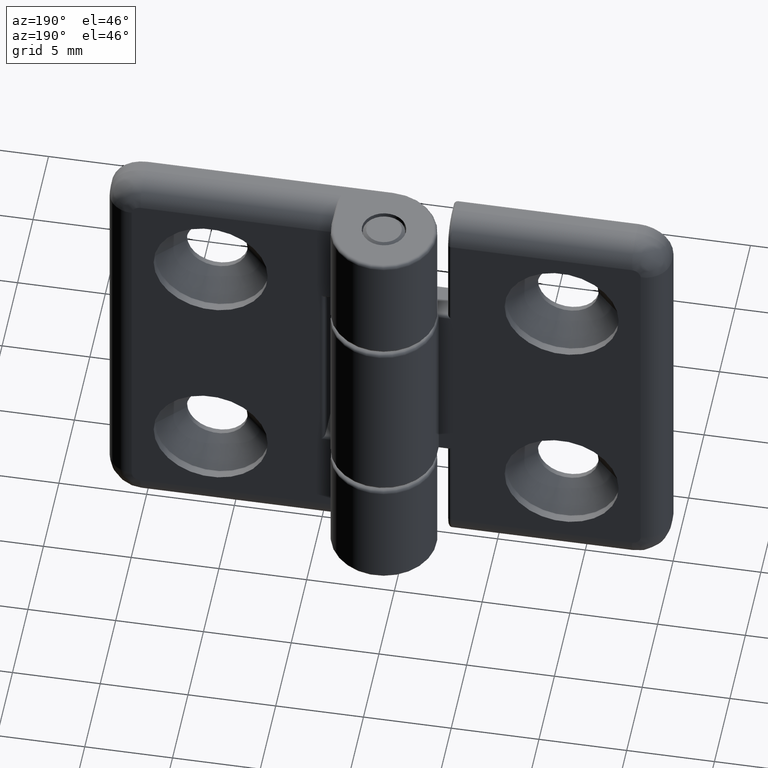
[diagram: clean part render]
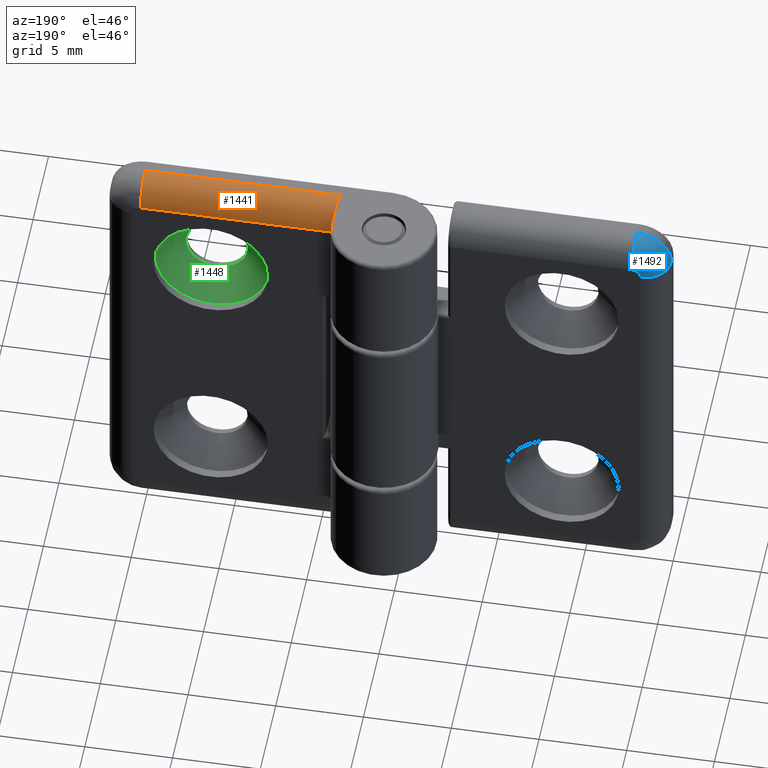
[diagram: same view with three faces highlighted in distinct colors, each labeled with its STEP entity id]
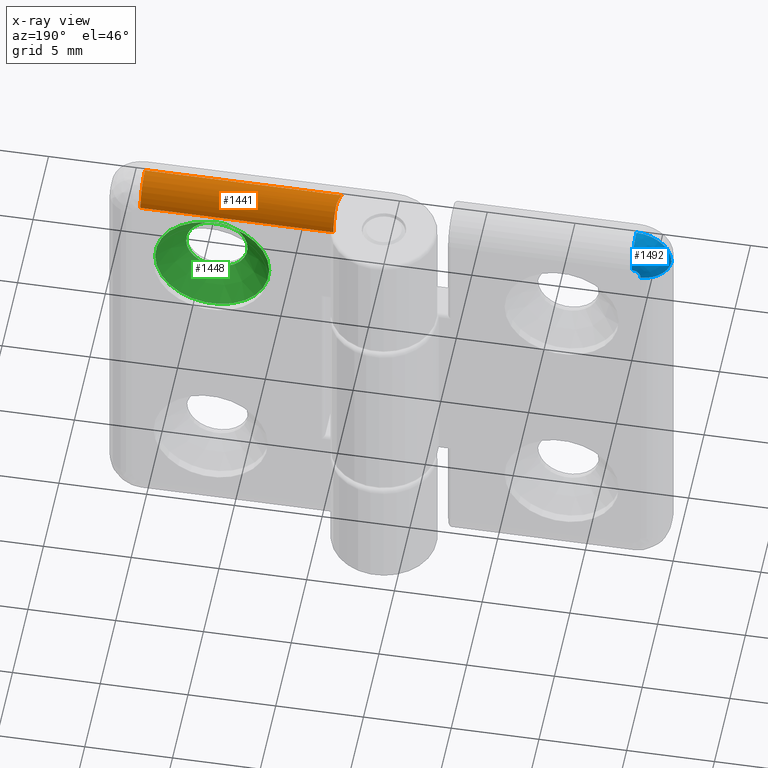
[diagram: x-ray of the same camera — body ghosted, the three highlighted faces saturated]
A machine part, auxiliary view with three faces highlighted in distinct colors.
The next image is the same camera in x-ray (body ghosted, the three faces saturated) — at least one of them is partly hidden behind the body in this view.
Their STEP definitions:

[orange] entity #1441 — the highlighted cylindrical surface (edge-blend (fillet) strip) has radius 1.5 mm, axis along (-1, 0, 0).
#157=FACE_OUTER_BOUND('',#262,.T.);
#262=EDGE_LOOP('',(#1104,#1105,#1106,#1107,#1108));
#354=B_SPLINE_CURVE_WITH_KNOTS('',3,(#2240,#2241,#2242,#2243,#2244,#2245),
 .UNSPECIFIED.,.F.,.F.,(4,2,4),(0.15983985999511,0.198650131294302,0.237460402593493),
 .UNSPECIFIED.);
#387=LINE('',#2379,#475);
#393=LINE('',#2434,#481);
#475=VECTOR('',#1871,11.);
#481=VECTOR('',#1915,11.2);
#553=CIRCLE('',#1547,1.5);
#574=CIRCLE('',#1586,1.5);
#634=VERTEX_POINT('',#2237);
#635=VERTEX_POINT('',#2239);
#662=VERTEX_POINT('',#2329);
#676=VERTEX_POINT('',#2378);
#688=VERTEX_POINT('',#2427);
#760=EDGE_CURVE('',#634,#635,#354,.F.);
#800=EDGE_CURVE('',#662,#635,#553,.F.);
#825=EDGE_CURVE('',#676,#662,#387,.T.);
#842=EDGE_CURVE('',#688,#676,#574,.T.);
#844=EDGE_CURVE('',#634,#688,#393,.T.);
#1104=ORIENTED_EDGE('',*,*,#800,.T.);
#1105=ORIENTED_EDGE('',*,*,#760,.F.);
#1106=ORIENTED_EDGE('',*,*,#844,.T.);
#1107=ORIENTED_EDGE('',*,*,#842,.T.);
#1108=ORIENTED_EDGE('',*,*,#825,.T.);
#1374=CYLINDRICAL_SURFACE('',#1588,1.5);
#1441=ADVANCED_FACE('',(#157),#1374,.T.);
#1547=AXIS2_PLACEMENT_3D('',#2330,#1813,#1814);
#1586=AXIS2_PLACEMENT_3D('',#2430,#1908,#1909);
#1588=AXIS2_PLACEMENT_3D('',#2433,#1913,#1914);
#1813=DIRECTION('center_axis',(-1.,0.,0.));
#1814=DIRECTION('ref_axis',(0.,0.707106781186548,0.707106781186547));
#1871=DIRECTION('',(-1.,0.,0.));
#1908=DIRECTION('center_axis',(-1.,0.,0.));
#1909=DIRECTION('ref_axis',(0.,0.,1.));
#1913=DIRECTION('center_axis',(-1.,0.,0.));
#1914=DIRECTION('ref_axis',(0.,0.707106781186548,0.707106781186547));
#1915=DIRECTION('',(1.,0.,0.));
#2237=CARTESIAN_POINT('',(2.8,-2.2,12.5));
#2239=CARTESIAN_POINT('',(3.,-1.45166852264521,12.3));
#2240=CARTESIAN_POINT('Ctrl Pts',(3.,-1.45166852264521,12.3));
#2241=CARTESIAN_POINT('Ctrl Pts',(3.,-1.56378708417621,12.3645398836841));
#2242=CARTESIAN_POINT('Ctrl Pts',(2.9704720193987,-1.68907173392049,12.4165700915651));
#2243=CARTESIAN_POINT('Ctrl Pts',(2.89299666646422,-1.94649356205283,12.4844020874547));
#2244=CARTESIAN_POINT('Ctrl Pts',(2.84437271077872,-2.07848032684421,12.5));
#2245=CARTESIAN_POINT('Ctrl Pts',(2.8,-2.2,12.5));
#2329=CARTESIAN_POINT('',(3.,-0.699999999999999,11.));
#2330=CARTESIAN_POINT('Origin',(3.,-2.2,11.));
#2378=CARTESIAN_POINT('',(14.,-0.699999999999999,11.));
#2379=CARTESIAN_POINT('',(11.25,-0.699999999999999,11.));
#2427=CARTESIAN_POINT('',(14.,-2.2,12.5));
#2430=CARTESIAN_POINT('Origin',(14.,-2.2,11.));
#2433=CARTESIAN_POINT('Origin',(11.25,-2.2,11.));
#2434=CARTESIAN_POINT('',(11.25,-2.2,12.5));

[blue] entity #1492 — the highlighted face is a freeform B-spline surface patch.
#48=(
BOUNDED_SURFACE()
B_SPLINE_SURFACE(2,2,((#2650,#2651,#2652),(#2653,#2654,#2655),(#2656,#2657,
#2658)),.UNSPECIFIED.,.F.,.F.,.F.)
B_SPLINE_SURFACE_WITH_KNOTS((3,3),(3,3),(-1.57079632679474,3.22098823642465E-13),
(1.1102230246247E-13,1.57079632679479),.UNSPECIFIED.)
GEOMETRIC_REPRESENTATION_ITEM()
RATIONAL_B_SPLINE_SURFACE(((1.,0.707106781186625,1.),(0.70710678118649,
0.500000000000014,0.70710678118649),(1.,0.707106781186625,1.)))
REPRESENTATION_ITEM('')
SURFACE()
);
#208=FACE_OUTER_BOUND('',#328,.T.);
#328=EDGE_LOOP('',(#1320,#1321,#1322,#1323));
#613=CIRCLE('',#1677,2.);
#614=CIRCLE('',#1680,1.5);
#616=CIRCLE('',#1683,0.5);
#622=CIRCLE('',#1693,1.5);
#740=VERTEX_POINT('',#2614);
#741=VERTEX_POINT('',#2618);
#742=VERTEX_POINT('',#2624);
#744=VERTEX_POINT('',#2630);
#933=EDGE_CURVE('',#741,#740,#613,.F.);
#936=EDGE_CURVE('',#742,#741,#614,.T.);
#939=EDGE_CURVE('',#742,#744,#616,.T.);
#948=EDGE_CURVE('',#740,#744,#622,.T.);
#1320=ORIENTED_EDGE('',*,*,#939,.T.);
#1321=ORIENTED_EDGE('',*,*,#948,.F.);
#1322=ORIENTED_EDGE('',*,*,#933,.F.);
#1323=ORIENTED_EDGE('',*,*,#936,.F.);
#1492=ADVANCED_FACE('',(#208),#48,.F.);
#1677=AXIS2_PLACEMENT_3D('',#2620,#2136,#2137);
#1680=AXIS2_PLACEMENT_3D('',#2626,#2144,#2145);
#1683=AXIS2_PLACEMENT_3D('',#2632,#2151,#2152);
#1693=AXIS2_PLACEMENT_3D('',#2659,#2174,#2175);
#2136=DIRECTION('center_axis',(0.,1.,0.));
#2137=DIRECTION('ref_axis',(0.,0.,-1.));
#2144=DIRECTION('center_axis',(-1.,0.,0.));
#2145=DIRECTION('ref_axis',(0.,1.,0.));
#2151=DIRECTION('center_axis',(0.,-1.,0.));
#2152=DIRECTION('ref_axis',(0.707106781186548,0.,-0.707106781186548));
#2174=DIRECTION('center_axis',(0.,0.,1.));
#2175=DIRECTION('ref_axis',(1.,0.,0.));
#2614=CARTESIAN_POINT('',(16.,-2.2,-10.5));
#2618=CARTESIAN_POINT('',(14.,-2.2,-12.5));
#2620=CARTESIAN_POINT('Origin',(14.,-2.2,-10.5));
#2624=CARTESIAN_POINT('',(14.,-0.699999999999999,-11.));
#2626=CARTESIAN_POINT('Origin',(14.,-2.2,-11.));
#2630=CARTESIAN_POINT('',(14.5,-0.699999999999999,-10.5));
#2632=CARTESIAN_POINT('Origin',(14.,-0.699999999999999,-10.5));
#2650=CARTESIAN_POINT('Ctrl Pts',(13.9999999999995,-0.700000000000011,-11.));
#2651=CARTESIAN_POINT('Ctrl Pts',(14.4999999999999,-0.699999999999917,-10.9999999999999));
#2652=CARTESIAN_POINT('Ctrl Pts',(14.5,-0.700000000000027,-10.4999999999995));
#2653=CARTESIAN_POINT('Ctrl Pts',(13.9999999999995,-0.699999999999917,-12.5000000000002));
#2654=CARTESIAN_POINT('Ctrl Pts',(16.,-0.699999999999542,-12.5));
#2655=CARTESIAN_POINT('Ctrl Pts',(16.0000000000002,-0.699999999999982,-10.4999999999995));
#2656=CARTESIAN_POINT('Ctrl Pts',(13.9999999999998,-2.20000000000014,-12.5));
#2657=CARTESIAN_POINT('Ctrl Pts',(15.9999999999998,-2.19999999999977,-12.4999999999998));
#2658=CARTESIAN_POINT('Ctrl Pts',(16.,-2.20000000000021,-10.4999999999998));
#2659=CARTESIAN_POINT('Origin',(14.5,-2.2,-10.5));

[green] entity #1448 — the highlighted conical surface has half-angle 45 deg.
#41=CONICAL_SURFACE('',#1597,2.5,0.785398163397448);
#70=FACE_BOUND('',#273,.T.);
#164=FACE_OUTER_BOUND('',#272,.T.);
#272=EDGE_LOOP('',(#1132));
#273=EDGE_LOOP('',(#1133));
#577=CIRCLE('',#1598,3.25);
#578=CIRCLE('',#1599,1.75);
#691=VERTEX_POINT('',#2451);
#692=VERTEX_POINT('',#2453);
#852=EDGE_CURVE('',#691,#691,#577,.T.);
#853=EDGE_CURVE('',#692,#692,#578,.T.);
#1132=ORIENTED_EDGE('',*,*,#852,.F.);
#1133=ORIENTED_EDGE('',*,*,#853,.F.);
#1448=ADVANCED_FACE('',(#164,#70),#41,.F.);
#1597=AXIS2_PLACEMENT_3D('',#2450,#1937,#1938);
#1598=AXIS2_PLACEMENT_3D('',#2452,#1939,#1940);
#1599=AXIS2_PLACEMENT_3D('',#2454,#1941,#1942);
#1937=DIRECTION('center_axis',(0.,1.,0.));
#1938=DIRECTION('ref_axis',(1.,0.,0.));
#1939=DIRECTION('center_axis',(0.,-1.,0.));
#1940=DIRECTION('ref_axis',(1.,0.,0.));
#1941=DIRECTION('center_axis',(0.,1.,0.));
#1942=DIRECTION('ref_axis',(1.,0.,0.));
#2450=CARTESIAN_POINT('Origin',(10.,-1.95,6.75));
#2451=CARTESIAN_POINT('',(13.25,-1.2,6.75));
#2452=CARTESIAN_POINT('Origin',(10.,-1.2,6.75));
#2453=CARTESIAN_POINT('',(11.75,-2.7,6.75));
#2454=CARTESIAN_POINT('Origin',(10.,-2.7,6.75));